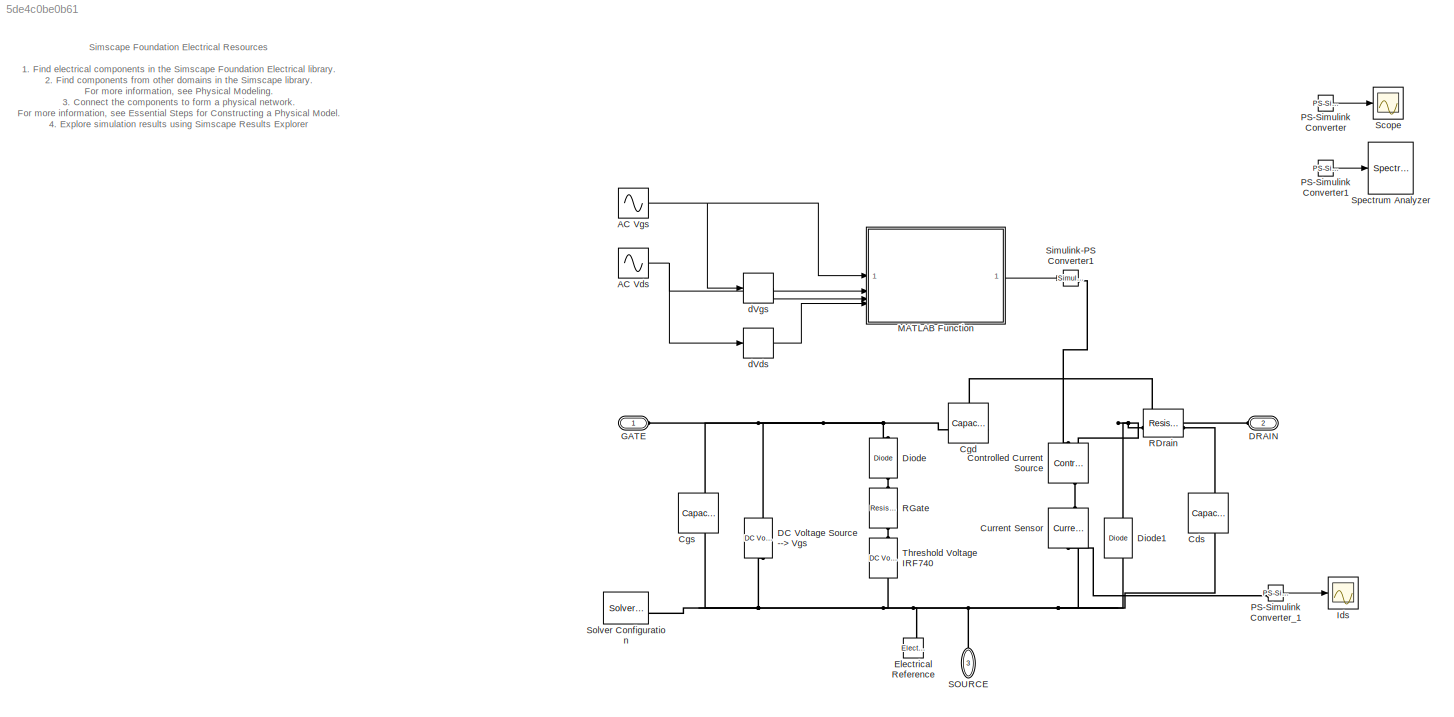
MODEL slx_5de4c0be0b61
KIND model
CONFIG AbsTol = 1e-3
CONFIG EnableMultiTasking = off
CONFIG FixedStep = auto
CONFIG MaxStep = auto
CONFIG MinStep = auto
CONFIG RelTol = 1e-3
CONFIG SampleTimeConstraint = Unconstrained
CONFIG SolverName = VariableStepAuto
CONFIG StartTime = 0.0
CONFIG StopTime = 0.5
BLOCK [Sin] AC Vds
  Amplitude = 100
  Bias = 200
  Frequency = 2*pi*0.8e5
  SampleTime = 0
BLOCK [Sin] AC Vgs
  Amplitude = 10
  Frequency = 2*pi*0.16e6
  SampleTime = 0
BLOCK [Reference] Cds  REF=fl_lib/Electrical/Electrical Elements/Capacitor
  NameLocation = right
  SourceBlock = fl_lib/Electrical/Electrical Elements/Capacitor
  SourceType = Capacitor
BLOCK [Reference] Cgd  REF=fl_lib/Electrical/Electrical Elements/Capacitor
  NameLocation = top
  SourceBlock = fl_lib/Electrical/Electrical Elements/Capacitor
  SourceType = Capacitor
BLOCK [Reference] Cgs  REF=fl_lib/Electrical/Electrical Elements/Capacitor
  NameLocation = right
  SourceBlock = fl_lib/Electrical/Electrical Elements/Capacitor
  SourceType = Capacitor
BLOCK [Reference] Controlled Current Source  REF=fl_lib/Electrical/Electrical Sources/Controlled Current
Source
  NameLocation = left
  SourceBlock = fl_lib/Electrical/Electrical Sources/Controlled Current\nSource
  SourceType = Controlled Current\nSource
BLOCK [Reference] Current Sensor  REF=fl_lib/Electrical/Electrical Sensors/Current Sensor
  NameLocation = left
  SourceBlock = fl_lib/Electrical/Electrical Sensors/Current Sensor
  SourceType = Current Sensor
BLOCK [Reference] DC Voltage Source --> Vgs  REF=fl_lib/Electrical/Electrical Sources/DC Voltage Source
  NameLocation = right
  SourceBlock = fl_lib/Electrical/Electrical Sources/DC Voltage Source
  SourceType = DC Voltage Source
BLOCK [PMIOPort] DRAIN
  NameLocation = top
  Port = 2
  Side = Left
BLOCK [Reference] Diode  REF=fl_lib/Electrical/Electrical Elements/Diode
  NameLocation = left
  SourceBlock = fl_lib/Electrical/Electrical Elements/Diode
  SourceType = Diode
BLOCK [Reference] Diode1  REF=fl_lib/Electrical/Electrical Elements/Diode
  NameLocation = right
  SourceBlock = fl_lib/Electrical/Electrical Elements/Diode
  SourceType = Diode
BLOCK [Reference] Electrical Reference  REF=fl_lib/Electrical/Electrical Elements/Electrical Reference
  SourceBlock = fl_lib/Electrical/Electrical Elements/Electrical Reference
  SourceType = Electrical Reference
BLOCK [PMIOPort] GATE
  Description = G
  Side = Left
BLOCK [Scope] Ids
  Floating = off
  NumInputPorts = 1
  ScopeSpecificationString = Simulink.scopes.TimeScopeBlockCfg('CurrentConfiguration', extmgr.ConfigurationSet(extmgr.Configuration('Core','General UI',true),extmgr.Configuration('Core','Source UI',true),extmgr.Configuration('Sources','WiredSimulink',true,'DataLoggingVariableName','ScopeData1'),extmgr.Configuration('Visuals','Time Domain',true,'SerializedDisplays',{struct('MinYLimReal','-1.25786','MaxYLimReal','11.25087','YLa...<+1459ch>
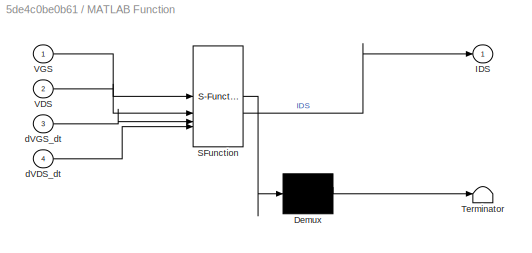
BLOCK [SubSystem] MATLAB Function
  ErrorFcn = Stateflow.Translate.translate
  PermitHierarchicalResolution = ExplicitOnly
  SFBlockType = MATLAB Function
  TreatAsAtomicUnit = on
BLOCK [Demux] MATLAB Function/ Demux 
  Outputs = 1
BLOCK [S-Function] MATLAB Function/ SFunction 
  EnableBusSupport = on
  FunctionName = sf_sfun
  PortCounts = [4 2]
  SFcnIsStateOwnerBlock = off
  SFunctionDeploymentMode = off
  Tag = Stateflow S-Function 2
BLOCK [Terminator] MATLAB Function/ Terminator 
BLOCK [Outport] MATLAB Function/IDS
BLOCK [Inport] MATLAB Function/VDS
  Port = 2
BLOCK [Inport] MATLAB Function/VGS
BLOCK [Inport] MATLAB Function/dVDS_dt
  Port = 4
BLOCK [Inport] MATLAB Function/dVGS_dt
  Port = 3
BLOCK [Reference] PS-Simulink Converter  REF=nesl_utility/PS-Simulink
Converter
  SourceBlock = nesl_utility/PS-Simulink\nConverter
  SourceType = PS-Simulink\nConverter
BLOCK [Reference] PS-Simulink Converter1  REF=nesl_utility/PS-Simulink
Converter
  SourceBlock = nesl_utility/PS-Simulink\nConverter
  SourceType = PS-Simulink\nConverter
BLOCK [Reference] PS-Simulink Converter_1  REF=nesl_utility/PS-Simulink
Converter
  SourceBlock = nesl_utility/PS-Simulink\nConverter
  SourceType = PS-Simulink\nConverter
BLOCK [Reference] RDrain  REF=fl_lib/Electrical/Electrical Elements/Resistor
  NameLocation = top
  SourceBlock = fl_lib/Electrical/Electrical Elements/Resistor
  SourceType = Resistor
BLOCK [Reference] RGate  REF=fl_lib/Electrical/Electrical Elements/Resistor
  NameLocation = left
  SourceBlock = fl_lib/Electrical/Electrical Elements/Resistor
  SourceType = Resistor
BLOCK [PMIOPort] SOURCE
  NameLocation = right
  Port = 3
  Side = Left
BLOCK [Scope] Scope
  Floating = off
  NumInputPorts = 1
  ScopeSpecificationString = Simulink.scopes.TimeScopeBlockCfg('CurrentConfiguration', extmgr.ConfigurationSet(extmgr.Configuration('Core','General UI',true),extmgr.Configuration('Core','Source UI',true),extmgr.Configuration('Sources','WiredSimulink',true),extmgr.Configuration('Visuals','Time Domain',true),extmgr.Configuration('Tools','Plot Navigation',true),extmgr.Configuration('Tools','Measurements',true)),'Version','2019b'...<+1ch>
BLOCK [Reference] Simulink-PS Converter1  REF=nesl_utility/Simulink-PS
Converter
  SourceBlock = nesl_utility/Simulink-PS\nConverter
  SourceType = Simulink-PS\nConverter
BLOCK [Reference] Solver Configuration  REF=nesl_utility/Solver
Configuration
  SourceBlock = nesl_utility/Solver\nConfiguration
  SourceType = Solver\nConfiguration
BLOCK [SpectrumAnalyzer] Spectrum Analyzer
  AveragingMethod = Running
  AxesScalingNumUpdates = 10
  GraphicalSettings = {"GraphicalSettings":{"Style":{"BackgroundColor":[0.12941176470588237,0.12941176470588237,0.12941176470588237],"AxesColor":[0,0,0],"LabelsColor":[0.6862745098039216,0.6862745098039216,0.6862745098039216],"PreserveColors":false,"Visible":[true],"LineStyle":["-"],"LineColor":[[1,1,0]],"LineWidth":[0.5],"Marker":["none"],"FontSize":"small"},"Cursors":{"Enabled":false,"XLocation":[2,8],"YLocation":[2,...<+857ch>
  Method = Welch
  PlotAsTwoSidedSpectrum = off
  SampleRate = 10e3
  ScopeFrameLocation = window
  ScopeSpecificationString = spbscopes.SpectrumAnalyzerBlockCfg('CurrentConfiguration', extmgr.ConfigurationSet(extmgr.Configuration('Core','General UI',true,'ShowNewAction',false,'ShowLoadConfigSet',false,'ShowSaveConfigSet',false,'ShowConfiguration',false,'ShowCloseAll',false,'DisplayFullSourceName',false,'MessageLogAutoOpenMode','for warn/fail messages','MessageLogDialogPosition',[20 520 450 500],'ShowMainToolbar',true,'Sh...<+8095ch>
  SegLen = 128
  ShowGrid = off
  Span = 10e3
  StartFrequency = -5e3
  StopFrequency = 5e3
  WasSavedAsWebScope = on
  WindowPosition = [368.000000,182.000000,800.000000,500.000000,]
  YLimits = [-3603.44492261,-2802.67938425]
BLOCK [Reference] Threshold Voltage IRF740  REF=fl_lib/Electrical/Electrical Sources/DC Voltage Source
  NameLocation = right
  SourceBlock = fl_lib/Electrical/Electrical Sources/DC Voltage Source
  SourceType = DC Voltage Source
BLOCK [Derivative] dVds
BLOCK [Derivative] dVgs
ANNOTATION (root): 1. Find electrical components in the Simscape Foundation Electrical library . 2. Find components from other domains in the Simscape library . For more information, see Physical Modeling . 3. Connect the components to form a physical network. For more information, see Essential Steps for Constructing a Physical Model . 4. Explore simulation results using Simscape Results Explorer
ANNOTATION (root): Simscape Foundation Electrical Resources
NET AC Vds:1 -> MATLAB Function:2, dVds:1
NET AC Vgs:1 -> MATLAB Function:1, dVgs:1
LINE MATLAB Function:1 -> Simulink-PS Converter1:1
LINE PS-Simulink Converter1:1 -> Spectrum Analyzer:1
LINE PS-Simulink Converter:1 -> Scope:1
LINE PS-Simulink Converter_1:1 -> Ids:1
LINE dVds:1 -> MATLAB Function:4
LINE dVgs:1 -> MATLAB Function:3
PNET net1: Cds:LConn1 -- Cgs:LConn1 -- Current Sensor:RConn2 -- DC Voltage Source --> Vgs:RConn1 -- Diode1:LConn1 -- Electrical Reference:LConn1 -- SOURCE:RConn1 -- Solver Configuration:RConn1 -- Threshold Voltage IRF740:RConn1
PNET net2: Cds:RConn1 -- Cgd:LConn1 -- DRAIN:RConn1 -- RDrain:LConn1
PNET net3: Cgd:RConn1 -- Cgs:RConn1 -- DC Voltage Source --> Vgs:LConn1 -- Diode:LConn1 -- GATE:RConn1
PLINE Controlled Current Source:LConn1 -- Current Sensor:LConn1
PLINE Controlled Current Source:RConn1 -- Simulink-PS Converter1:RConn1
PNET net4: Controlled Current Source:RConn2 -- Diode1:RConn1 -- RDrain:RConn1
PLINE Current Sensor:RConn1 -- PS-Simulink Converter_1:LConn1
PLINE Diode:RConn1 -- RGate:LConn1
PLINE RGate:RConn1 -- Threshold Voltage IRF740:LConn1
note: NET lines group one-source signal fan-out (src -> all destinations, sorted); 1:1 wires keep LINE; PNET lines group multi-terminal physical nets as a canonical sorted terminal list (undirected conserving connections); 2-terminal nets keep the pairwise PLINE form
CHART MATLAB Function states=1 transitions=1
  STATE_LABEL 'eML_blk_kernel()'
  STATE_LABEL 'SCRIPT:\nfunction IDS = mosfet_ids_model(VGS, VDS, dVGS_dt, dVDS_dt)\n%#codegen\n% Calcola IDS in base a VGS, VDS e le derivate, secondo modello dinamico IRF740\n\n% --- Parametri modello IRF740 ---\nVth = 4.7;               % Tensione di soglia [V]\nKPLIN = 2.4;             % Guadagno regione lineare [A/V^2]\nKPSAT = 8.84;            % Guadagno regione saturazione [A/V^2]\ntheta = 0.3;             % Effet...<+1029ch>'
CHART  states=0 transitions=0
